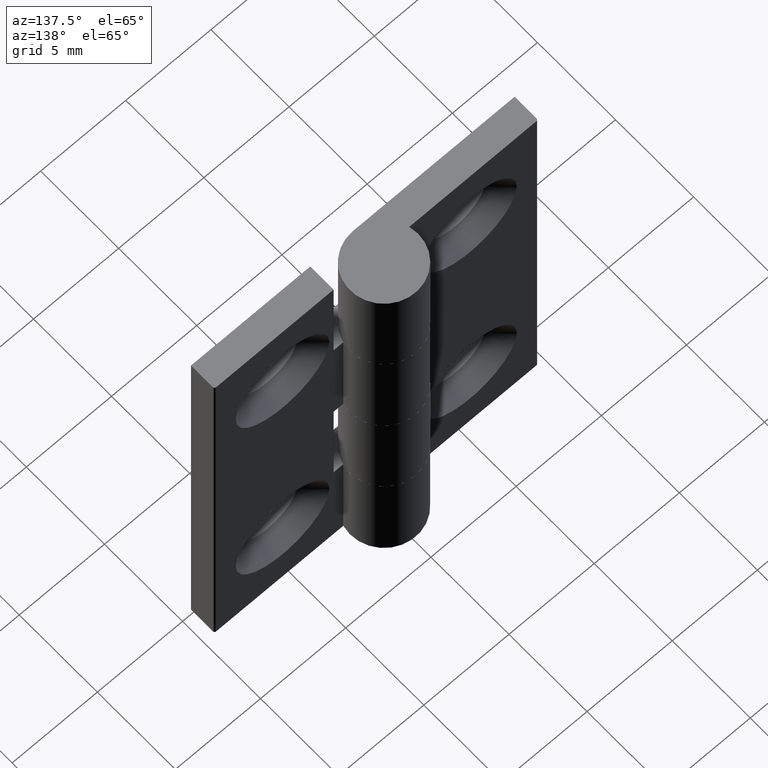
[diagram: clean part render]
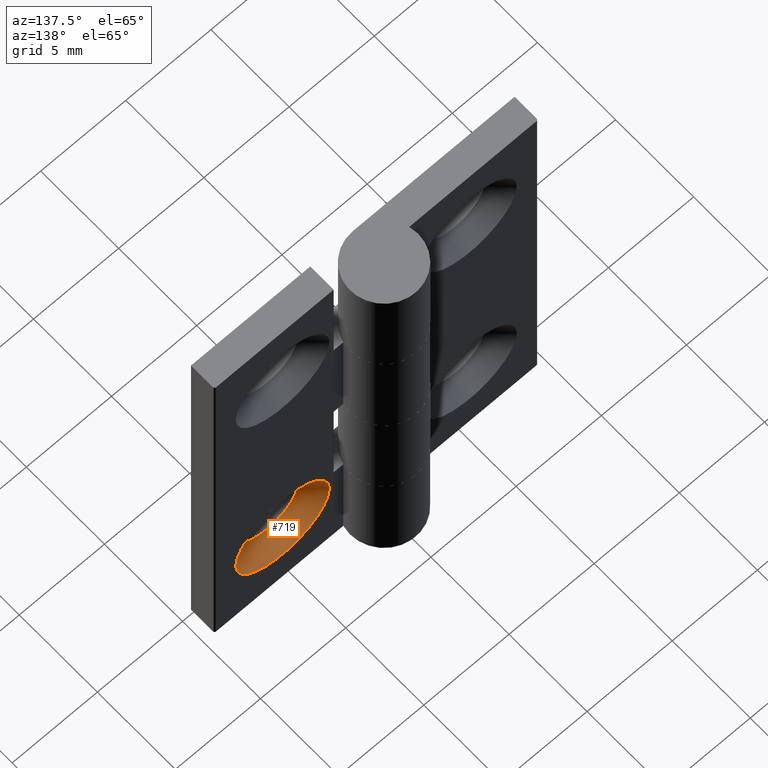
[diagram: same view with one face highlighted and labeled with its STEP entity id]
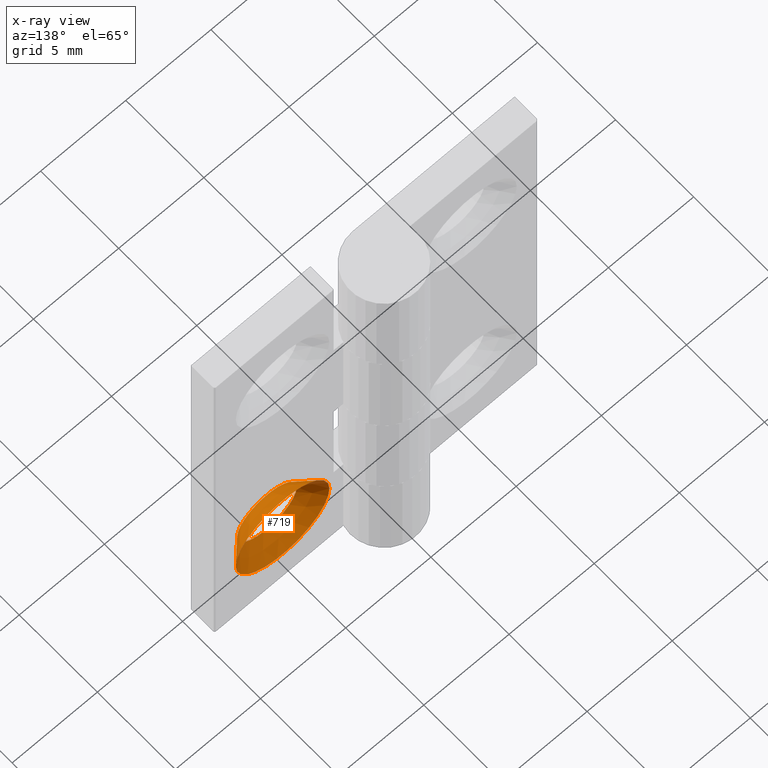
[diagram: x-ray of the same camera — body ghosted, the highlighted face saturated]
A machine part, auxiliary view. The second image highlights one B-rep face of the part: STEP entity #719.
The next image is the same camera in x-ray: the body ghosted, the highlighted face saturated — about 0% of this face is hidden behind the body in this view.
In plain terms, the highlighted conical surface has half-angle 45 deg.
Its self-contained STEP definition (entity closure, byte-faithful):
#37=CONICAL_SURFACE('',#794,2.25,45.);
#76=FACE_BOUND('',#212,.T.);
#108=CIRCLE('',#787,2.75);
#112=CIRCLE('',#795,1.75);
#148=FACE_OUTER_BOUND('',#211,.T.);
#211=EDGE_LOOP('',(#642));
#212=EDGE_LOOP('',(#643));
#393=VERTEX_POINT('',#1195);
#397=VERTEX_POINT('',#1210);
#478=EDGE_CURVE('',#393,#393,#108,.T.);
#485=EDGE_CURVE('',#397,#397,#112,.T.);
#642=ORIENTED_EDGE('',*,*,#478,.F.);
#643=ORIENTED_EDGE('',*,*,#485,.F.);
#719=ADVANCED_FACE('',(#148,#76),#37,.F.);
#787=AXIS2_PLACEMENT_3D('',#1196,#975,#976);
#794=AXIS2_PLACEMENT_3D('',#1209,#992,#993);
#795=AXIS2_PLACEMENT_3D('',#1211,#994,#995);
#975=DIRECTION('center_axis',(1.1686558153949E-16,-1.,0.));
#976=DIRECTION('ref_axis',(1.,1.1686558153949E-16,0.));
#992=DIRECTION('center_axis',(-1.1686558153949E-16,1.,0.));
#993=DIRECTION('ref_axis',(1.,1.1686558153949E-16,0.));
#994=DIRECTION('center_axis',(-1.1686558153949E-16,1.,0.));
#995=DIRECTION('ref_axis',(1.,1.1686558153949E-16,0.));
#1195=CARTESIAN_POINT('',(8.25,1.5,-7.5));
#1196=CARTESIAN_POINT('Origin',(5.5,1.5,-7.5));
#1209=CARTESIAN_POINT('Origin',(5.5,1.,-7.5));
#1210=CARTESIAN_POINT('',(7.25,0.5,-7.5));
#1211=CARTESIAN_POINT('Origin',(5.5,0.500000000000003,-7.5));